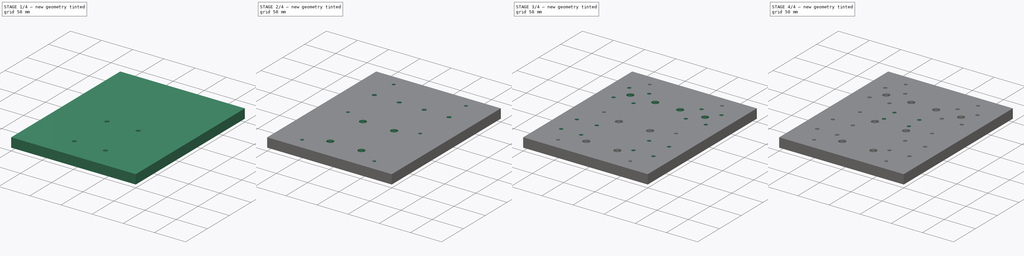
[diagram: build sequence overview — one tinted view per stage of 4, left to right]
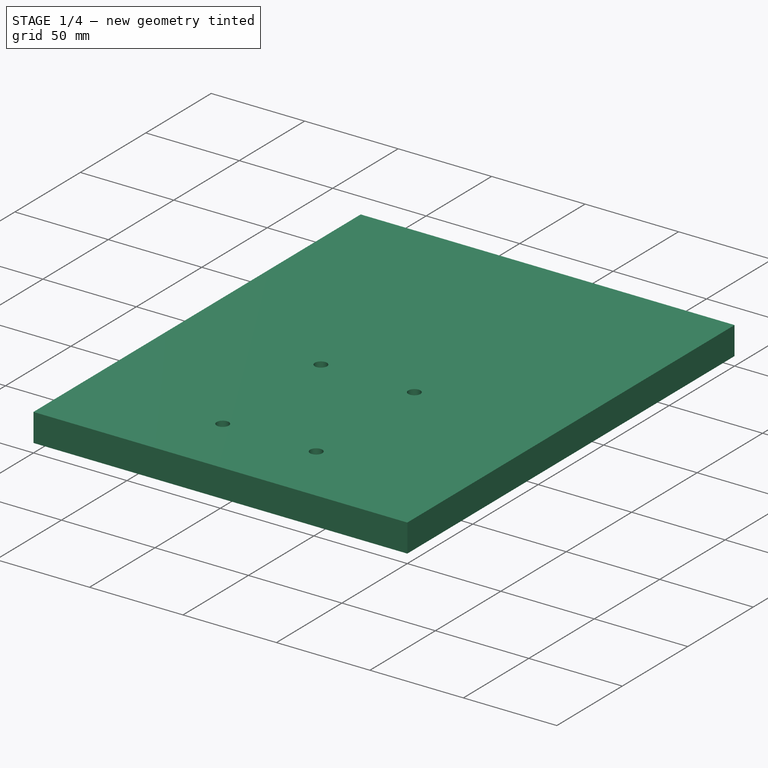
[diagram: stage 1 of 4 — iso view after this stage's code; geometry added in this stage tinted green]
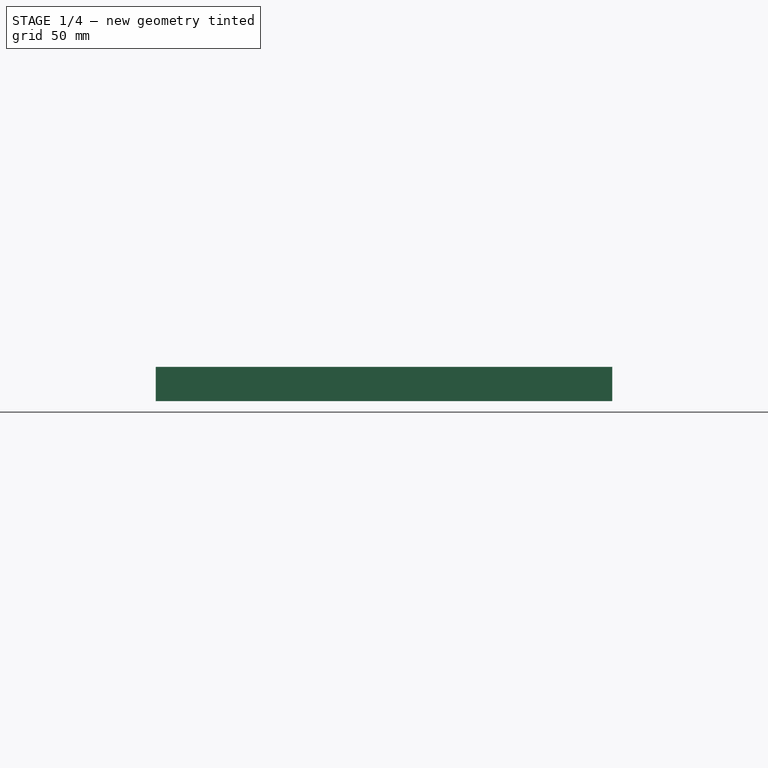
[diagram: stage 1 of 4 — front view after this stage's code; geometry added in this stage tinted green]
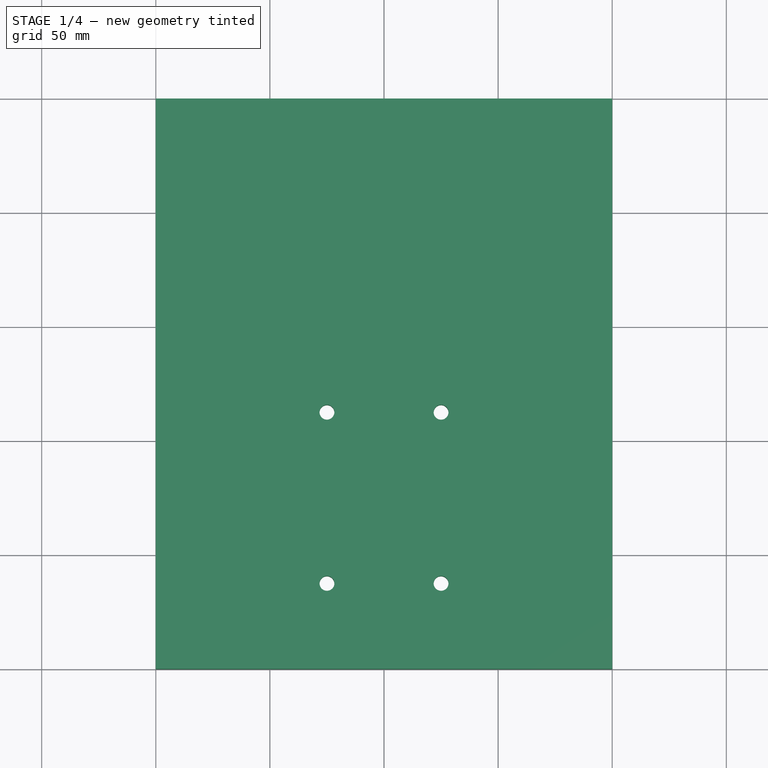
[diagram: stage 1 of 4 — top view after this stage's code; geometry added in this stage tinted green]
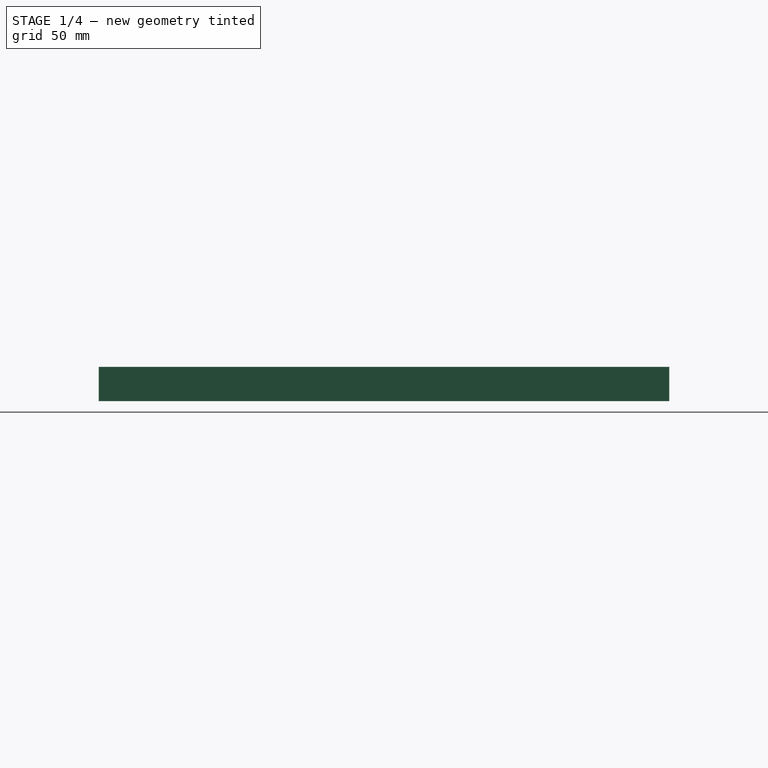
[diagram: stage 1 of 4 — right view after this stage's code; geometry added in this stage tinted green]
FCSTD DOCUMENT  (FreeCAD 0.17R9796 (Git))
Label: kreuzplatte1c
License: All rights reserved
LicenseURL: http://en.wikipedia.org/wiki/All_rights_reserved
objects: Sketcher::SketchObject×10, PartDesign::Pocket×9, PartDesign::Pad×1, PartDesign::Body×1
note: 31 computed .brp shape members not serialized (recipe doc carries the construction recipe); baked Part::Feature solids carry a one-line shape summary decoded from their .brp

FEATURE [Sketcher::SketchObject] Sketch
  MapMode = 5
  Support = -> [XY_Plane]
  sketch-geometry (4):
    g0: LineSegment StartX=0 StartY=250 StartZ=0 EndX=200 EndY=250 EndZ=0
    g1: LineSegment StartX=200 StartY=250 StartZ=0 EndX=200 EndY=0 EndZ=0
    g2: LineSegment StartX=200 StartY=0 StartZ=0 EndX=0 EndY=0 EndZ=0
    g3: LineSegment StartX=0 StartY=0 StartZ=0 EndX=0 EndY=250 EndZ=0
  constraints (11):
    c: Coincident(g0,g1)
    c: Coincident(g1,g2)
    c: Coincident(g2,g3)
    c: Coincident(g3,g0)
    c: Horizontal(g0)
    c: Horizontal(g2)
    c: Vertical(g1)
    c: Vertical(g3)
    c: Coincident(g2,g-1)
    c: DistanceX(g0,g0) = 200
    c: DistanceY(g3,g3) = 250
FEATURE [PartDesign::Pad] Pad
  Length = 15
  Length2 = 100
  Profile = -> Sketch
  Type = 0
FEATURE [Sketcher::SketchObject] Sketch001
  MapMode = 5
  Placement = pos=(0,0,15) rot=(0,0,1;0rad)
  Support = -> [Pad]
  sketch-geometry (4):
    g0: Circle CenterX=125 CenterY=37.5 CenterZ=0 NormalX=0 NormalY=0 NormalZ=1 Radius=3.25
    g1: Circle CenterX=75 CenterY=37.5 CenterZ=0 NormalX=0 NormalY=0 NormalZ=1 Radius=3.25
    g2: Circle CenterX=125 CenterY=112.5 CenterZ=0 NormalX=0 NormalY=0 NormalZ=1 Radius=3.25
    g3: Circle CenterX=75 CenterY=112.5 CenterZ=0 NormalX=0 NormalY=0 NormalZ=1 Radius=3.25
  constraints (12):
    c: DistanceY(g-1,g1) = 37.5
    c: DistanceY(g1,g0) = 0
    c: DistanceY(g1,g3) = 75
    c: DistanceY(g3,g2) = 0
    c: DistanceX(g-1,g1) = 75
    c: DistanceX(g1,g0) = 50
    c: DistanceX(g3,g1) = 0
    c: DistanceX(g0,g2) = 0
    c: Radius(g1) = 3.25
    c: Equal(g1,g3)
    c: Equal(g1,g2)
    c: Equal(g1,g0)
FEATURE [PartDesign::Pocket] Pocket
  BaseFeature = -> Pad
  Length = 15
  Profile = -> Sketch001
  Type = 0
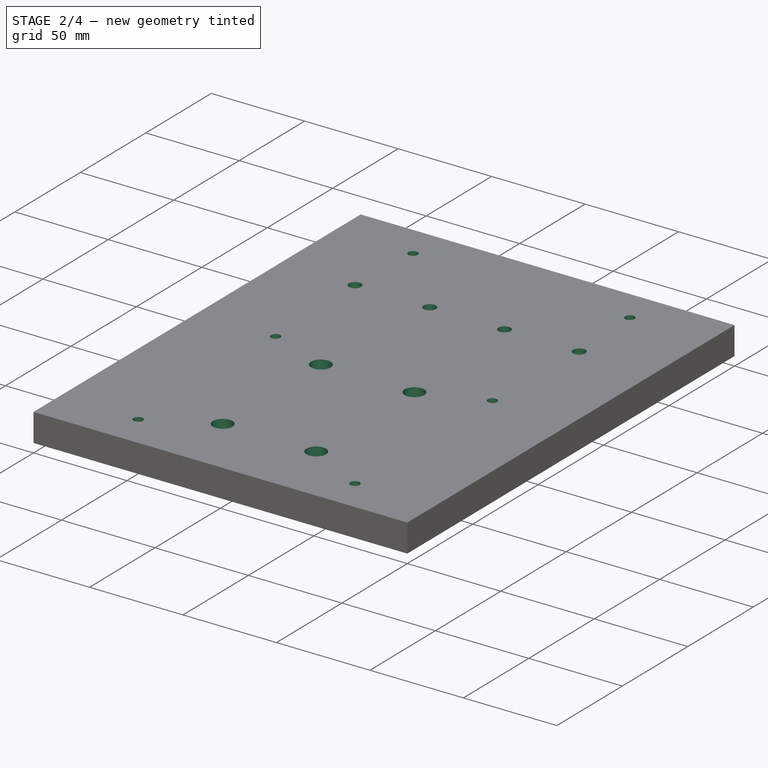
[diagram: stage 2 of 4 — iso view after this stage's code; geometry added in this stage tinted green]
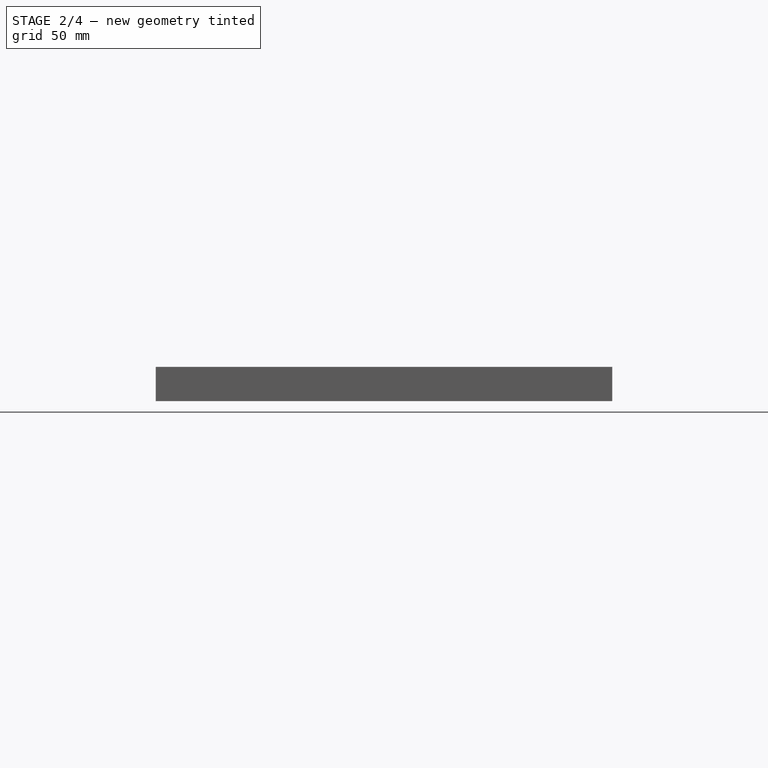
[diagram: stage 2 of 4 — front view after this stage's code; geometry added in this stage tinted green]
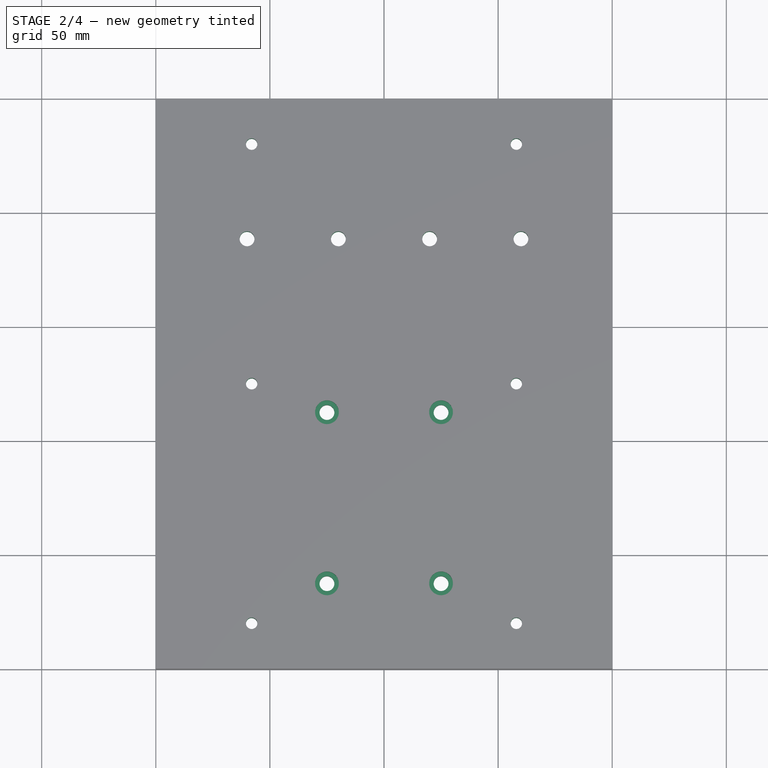
[diagram: stage 2 of 4 — top view after this stage's code; geometry added in this stage tinted green]
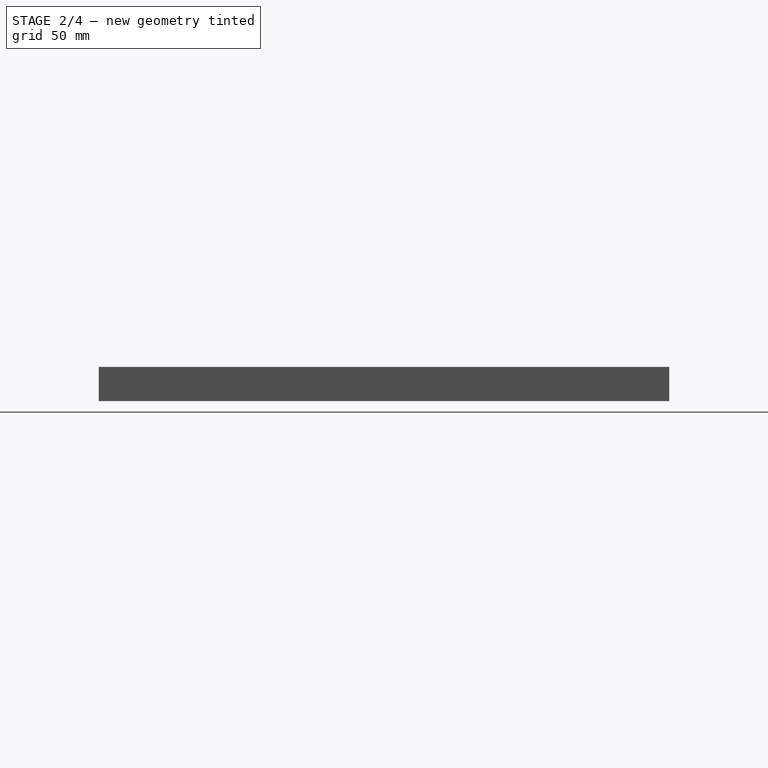
[diagram: stage 2 of 4 — right view after this stage's code; geometry added in this stage tinted green]
FEATURE [Sketcher::SketchObject] Sketch002
  MapMode = 5
  Placement = pos=(0,0,15) rot=(0,0,1;0rad)
  Support = -> [Pocket]
  sketch-geometry (4):
    g0: Circle CenterX=75 CenterY=112.5 CenterZ=0 NormalX=0 NormalY=0 NormalZ=1 Radius=5.2
    g1: Circle CenterX=125 CenterY=112.5 CenterZ=0 NormalX=0 NormalY=0 NormalZ=1 Radius=5.2
    g2: Circle CenterX=75 CenterY=37.5 CenterZ=0 NormalX=0 NormalY=0 NormalZ=1 Radius=5.2
    g3: Circle CenterX=125 CenterY=37.5 CenterZ=0 NormalX=0 NormalY=0 NormalZ=1 Radius=5.2
  constraints (12):
    c: DistanceY(g-1,g2) = 37.5
    c: DistanceY(g2,g3) = 0
    c: DistanceX(g-1,g2) = 75
    c: DistanceX(g2,g3) = 50
    c: DistanceY(g2,g0) = 75
    c: DistanceY(g0,g1) = 0
    c: DistanceX(g0,g2) = 0
    c: DistanceX(g1,g3) = 0
    c: Radius(g0) = 5.2
    c: Equal(g0,g1)
    c: Equal(g0,g3)
    c: Equal(g0,g2)
FEATURE [PartDesign::Pocket] Pocket001
  BaseFeature = -> Pocket
  Length = 6.2
  Profile = -> Sketch002
  Type = 0
FEATURE [Sketcher::SketchObject] Sketch003
  MapMode = 5
  Placement = pos=(0,0,15) rot=(0,0,1;0rad)
  Support = -> [Pocket001]
  sketch-geometry (6):
    g0: Circle CenterX=42 CenterY=230 CenterZ=0 NormalX=0 NormalY=0 NormalZ=1 Radius=2.5
    g1: Circle CenterX=42 CenterY=125 CenterZ=0 NormalX=0 NormalY=0 NormalZ=1 Radius=2.5
    g2: Circle CenterX=42 CenterY=20 CenterZ=0 NormalX=0 NormalY=0 NormalZ=1 Radius=2.5
    g3: Circle CenterX=158 CenterY=230 CenterZ=0 NormalX=0 NormalY=0 NormalZ=1 Radius=2.5
    g4: Circle CenterX=158 CenterY=125 CenterZ=0 NormalX=0 NormalY=0 NormalZ=1 Radius=2.5
    g5: Circle CenterX=158 CenterY=20 CenterZ=0 NormalX=0 NormalY=0 NormalZ=1 Radius=2.5
  constraints (18):
    c: DistanceX(g-1,g2) = 42
    c: DistanceY(g-1,g2) = 20
    c: DistanceX(g1,g2) = 0
    c: DistanceX(g0,g1) = 0
    c: DistanceY(g2,g5) = 0
    c: DistanceY(g4,g1) = 0
    c: DistanceY(g0,g3) = 0
    c: DistanceX(g-1,g5) = 158
    c: DistanceX(g5,g4) = 0
    c: DistanceX(g4,g3) = 0
    c: DistanceY(g-1,g1) = 125
    c: DistanceY(g1,g0) = 105
    c: Radius(g0) = 2.5
    c: Equal(g0,g3)
    c: Equal(g0,g4)
    c: Equal(g0,g1)
    c: Equal(g0,g2)
    c: Equal(g0,g5)
FEATURE [PartDesign::Pocket] Pocket002
  BaseFeature = -> Pocket001
  Length = 15
  Profile = -> Sketch003
  Type = 0
FEATURE [Sketcher::SketchObject] Sketch004
  MapMode = 5
  Placement = pos=(0,0,15) rot=(0,0,1;0rad)
  Support = -> [Pocket002]
  sketch-geometry (4):
    g0: Circle CenterX=40 CenterY=188.5 CenterZ=0 NormalX=0 NormalY=0 NormalZ=1 Radius=3.25
    g1: Circle CenterX=80 CenterY=188.5 CenterZ=0 NormalX=0 NormalY=0 NormalZ=1 Radius=3.25
    g2: Circle CenterX=120 CenterY=188.5 CenterZ=0 NormalX=0 NormalY=0 NormalZ=1 Radius=3.25
    g3: Circle CenterX=160 CenterY=188.5 CenterZ=0 NormalX=0 NormalY=0 NormalZ=1 Radius=3.25
  constraints (12):
    c: DistanceY(g-1,g0) = 188.5
    c: DistanceY(g0,g1) = 0
    c: DistanceY(g1,g2) = 0
    c: DistanceY(g2,g3) = 0
    c: Radius(g0) = 3.25
    c: Equal(g0,g1)
    c: Equal(g0,g2)
    c: Equal(g0,g3)
    c: DistanceX(g-1,g0) = 40
    c: DistanceX(g0,g1) = 40
    c: DistanceX(g1,g2) = 40
    c: DistanceX(g2,g3) = 40
FEATURE [PartDesign::Pocket] Pocket003
  BaseFeature = -> Pocket002
  Length = 15
  Profile = -> Sketch004
  Type = 0
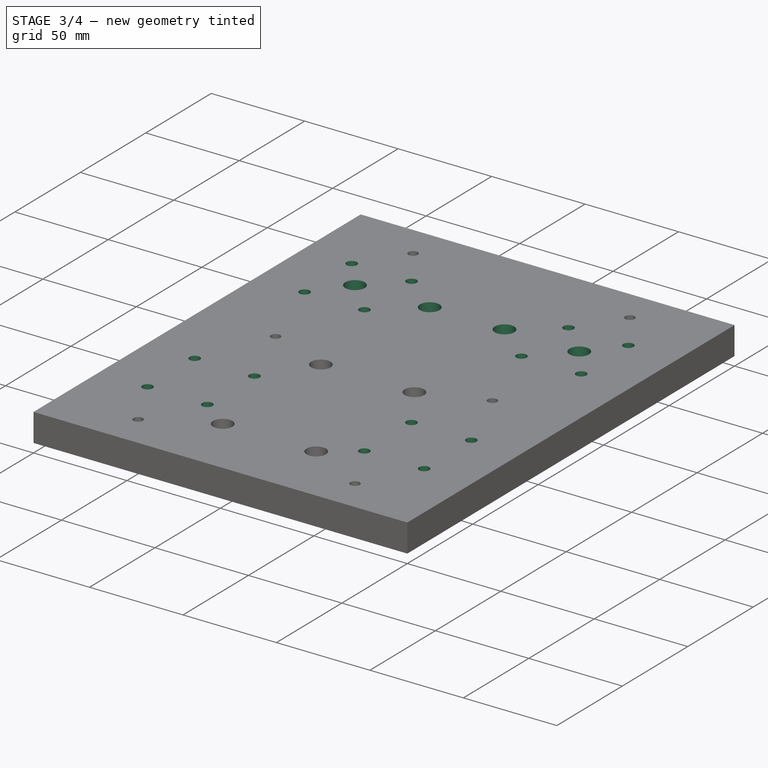
[diagram: stage 3 of 4 — iso view after this stage's code; geometry added in this stage tinted green]
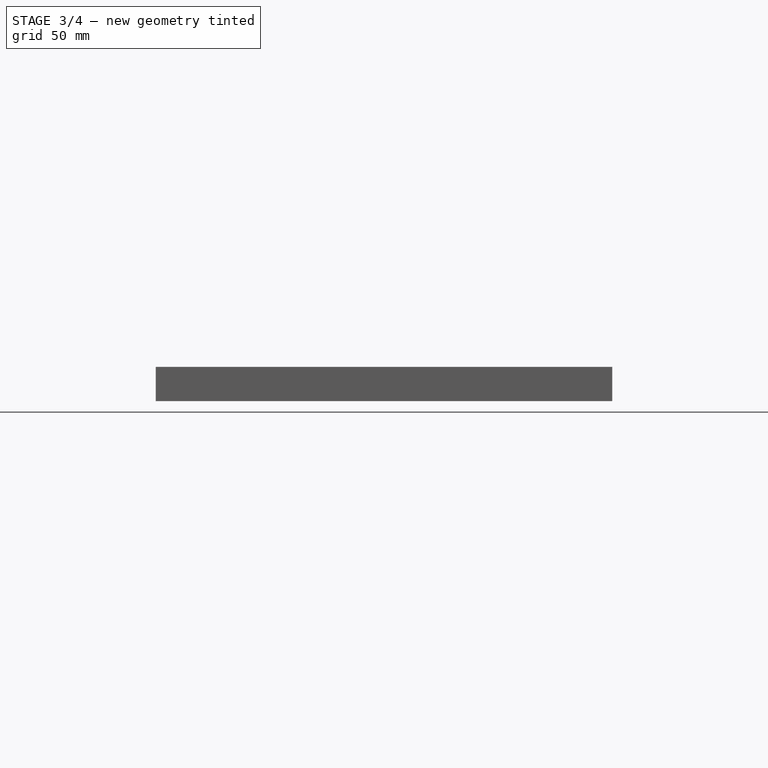
[diagram: stage 3 of 4 — front view after this stage's code; geometry added in this stage tinted green]
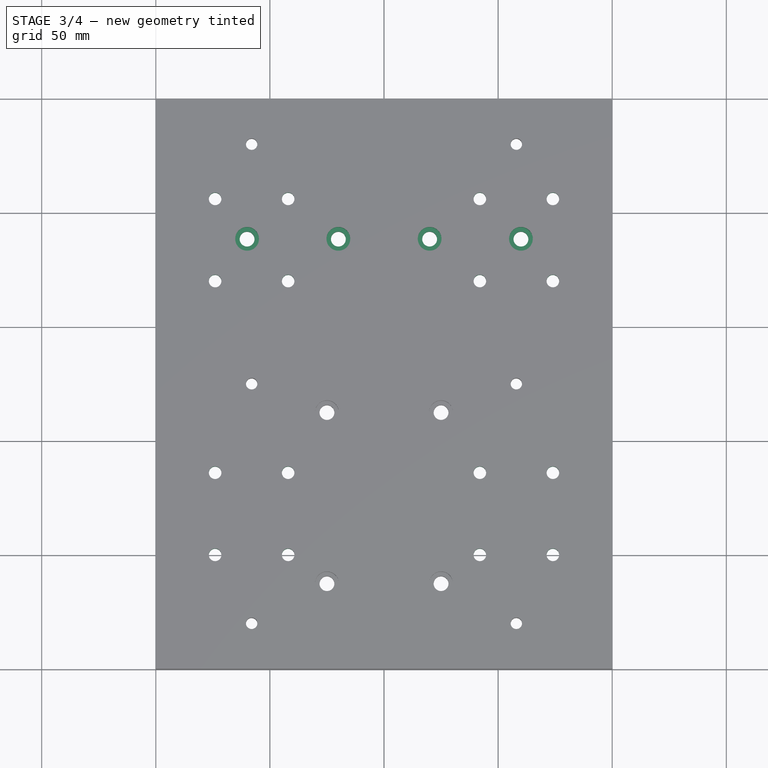
[diagram: stage 3 of 4 — top view after this stage's code; geometry added in this stage tinted green]
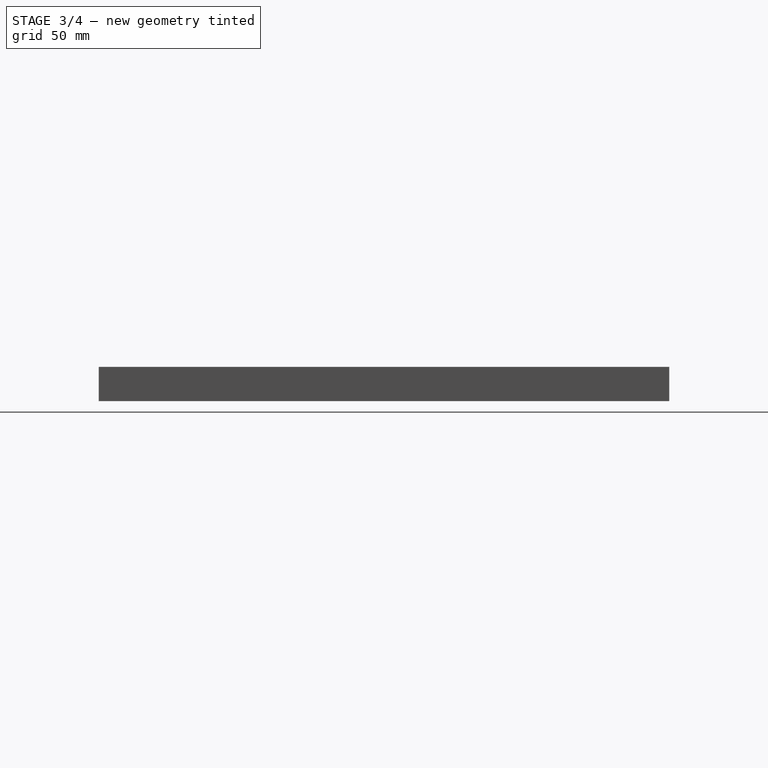
[diagram: stage 3 of 4 — right view after this stage's code; geometry added in this stage tinted green]
FEATURE [Sketcher::SketchObject] Sketch005
  MapMode = 5
  Placement = pos=(0,0,15) rot=(0,0,1;0rad)
  Support = -> [Pocket003]
  sketch-geometry (4):
    g0: Circle CenterX=40 CenterY=188.5 CenterZ=0 NormalX=0 NormalY=0 NormalZ=1 Radius=5.2
    g1: Circle CenterX=80 CenterY=188.5 CenterZ=0 NormalX=0 NormalY=0 NormalZ=1 Radius=5.2
    g2: Circle CenterX=120 CenterY=188.5 CenterZ=0 NormalX=0 NormalY=0 NormalZ=1 Radius=5.2
    g3: Circle CenterX=160 CenterY=188.5 CenterZ=0 NormalX=0 NormalY=0 NormalZ=1 Radius=5.2
  constraints (12):
    c: DistanceY(g-1,g0) = 188.5
    c: DistanceY(g0,g1) = 0
    c: DistanceY(g1,g2) = 0
    c: DistanceY(g2,g3) = 0
    c: DistanceX(g-1,g0) = 40
    c: DistanceX(g0,g1) = 40
    c: DistanceX(g1,g2) = 40
    c: DistanceX(g2,g3) = 40
    c: Radius(g0) = 5.2
    c: Equal(g0,g1)
    c: Equal(g0,g2)
    c: Equal(g0,g3)
FEATURE [PartDesign::Pocket] Pocket004
  BaseFeature = -> Pocket003
  Length = 7
  Profile = -> Sketch005
  Type = 0
FEATURE [Sketcher::SketchObject] Sketch006
  MapMode = 5
  Placement = pos=(0,0,15) rot=(0,0,1;0rad)
  Support = -> [Pocket004]
  sketch-geometry (16):
    g0: Circle CenterX=26 CenterY=206 CenterZ=0 NormalX=0 NormalY=0 NormalZ=1 Radius=2.75
    g1: Circle CenterX=58 CenterY=206 CenterZ=0 NormalX=0 NormalY=0 NormalZ=1 Radius=2.75
    g2: Circle CenterX=26 CenterY=170 CenterZ=0 NormalX=0 NormalY=0 NormalZ=1 Radius=2.75
    g3: Circle CenterX=58 CenterY=170 CenterZ=0 NormalX=0 NormalY=0 NormalZ=1 Radius=2.75
    g4: Circle CenterX=26 CenterY=86 CenterZ=0 NormalX=0 NormalY=0 NormalZ=1 Radius=2.75
    g5: Circle CenterX=58 CenterY=86 CenterZ=0 NormalX=0 NormalY=0 NormalZ=1 Radius=2.75
    g6: Circle CenterX=26 CenterY=50 CenterZ=0 NormalX=0 NormalY=0 NormalZ=1 Radius=2.75
    g7: Circle CenterX=58 CenterY=50 CenterZ=0 NormalX=0 NormalY=0 NormalZ=1 Radius=2.75
    g8: Circle CenterX=142 CenterY=206 CenterZ=0 NormalX=0 NormalY=0 NormalZ=1 Radius=2.75
    g9: Circle CenterX=174 CenterY=206 CenterZ=0 NormalX=0 NormalY=0 NormalZ=1 Radius=2.75
    g10: Circle CenterX=142 CenterY=170 CenterZ=0 NormalX=0 NormalY=0 NormalZ=1 Radius=2.75
    g11: Circle CenterX=174 CenterY=170 CenterZ=0 NormalX=0 NormalY=0 NormalZ=1 Radius=2.75
    g12: Circle CenterX=142 CenterY=86 CenterZ=0 NormalX=0 NormalY=0 NormalZ=1 Radius=2.75
    g13: Circle CenterX=174 CenterY=86 CenterZ=0 NormalX=0 NormalY=0 NormalZ=1 Radius=2.75
    g14: Circle CenterX=142 CenterY=50 CenterZ=0 NormalX=0 NormalY=0 NormalZ=1 Radius=2.75
    g15: Circle CenterX=174 CenterY=50 CenterZ=0 NormalX=0 NormalY=0 NormalZ=1 Radius=2.75
  constraints (45):
    c: DistanceX(g-1,g6) = 26
    c: DistanceX(g6,g7) = 32
    c: DistanceX(g4,g6) = 0
    c: DistanceX(g2,g4) = 0
    c: DistanceX(g0,g2) = 0
    c: DistanceX(g5,g7) = 0
    c: DistanceX(g3,g5) = 0
    c: DistanceX(g1,g3) = 0
    c: DistanceX(g-1,g14) = 142
    c: DistanceX(g14,g15) = 32
    c: DistanceY(g6,g7) = 0
    c: DistanceY(g7,g14) = 0
    c: DistanceY(g14,g15) = 0
    c: DistanceX(g12,g14) = 0
    c: DistanceX(g10,g12) = 0
    c: DistanceX(g8,g10) = 0
    c: DistanceX(g15,g13) = 0
    c: DistanceX(g11,g13) = 0
    c: DistanceX(g11,g9) = 0
    c: DistanceY(g4,g5) = 0
    c: DistanceY(g12,g5) = 0
    c: DistanceY(g12,g13) = 0
    c: DistanceY(g-1,g6) = 50
    c: DistanceY(g-1,g4) = 86
    c: DistanceY(g-1,g2) = 170
    c: DistanceY(g-1,g0) = 206
    c: DistanceY(g3,g2) = 0
    c: DistanceY(g10,g3) = 0
    c: DistanceY(g11,g10) = 0
    c: DistanceY(g0,g1) = 0
    c: DistanceY(g1,g8) = 0
    c: DistanceY(g8,g9) = 0
    c: Radius(g0) = 2.75
    c: Equal(g0,g1)
    c: Equal(g0,g3)
    c: Equal(g0,g2)
    c: Equal(g0,g4)
    c: Equal(g0,g5)
    c: Equal(g0,g7)
    c: Equal(g0,g6)
    c: Equal(g0, g8-g11) x4
    c: Equal(g0,g13)
    c: Equal(g0,g12)
    c: Equal(g0,g15)
    c: Equal(g0,g14)
FEATURE [PartDesign::Pocket] Pocket005
  BaseFeature = -> Pocket004
  Length = 15
  Profile = -> Sketch006
  Type = 0
FEATURE [Sketcher::SketchObject] Sketch007
  MapMode = 5
  Placement = pos=(0,0,0) rot=(1,0,0;3.14159rad)
  Support = -> [Pocket005]
  sketch-geometry (16):
    g0: Circle CenterX=26 CenterY=-50 CenterZ=0 NormalX=0 NormalY=0 NormalZ=1 Radius=5
    g1: Circle CenterX=58 CenterY=-50 CenterZ=0 NormalX=0 NormalY=0 NormalZ=1 Radius=5
    g2: Circle CenterX=142 CenterY=-50 CenterZ=0 NormalX=0 NormalY=0 NormalZ=1 Radius=5
    g3: Circle CenterX=174 CenterY=-50 CenterZ=0 NormalX=0 NormalY=0 NormalZ=1 Radius=5
    g4: Circle CenterX=142 CenterY=-86 CenterZ=0 NormalX=0 NormalY=0 NormalZ=1 Radius=5
    g5: Circle CenterX=174 CenterY=-86 CenterZ=0 NormalX=0 NormalY=0 NormalZ=1 Radius=5
    g6: Circle CenterX=26 CenterY=-86 CenterZ=0 NormalX=0 NormalY=0 NormalZ=1 Radius=5
    g7: Circle CenterX=58 CenterY=-86 CenterZ=0 NormalX=0 NormalY=0 NormalZ=1 Radius=5
    g8: Circle CenterX=26 CenterY=-170 CenterZ=0 NormalX=0 NormalY=0 NormalZ=1 Radius=5
    g9: Circle CenterX=58 CenterY=-170 CenterZ=0 NormalX=0 NormalY=0 NormalZ=1 Radius=5
    g10: Circle CenterX=26 CenterY=-206 CenterZ=0 NormalX=0 NormalY=0 NormalZ=1 Radius=5
    g11: Circle CenterX=58 CenterY=-206 CenterZ=0 NormalX=0 NormalY=0 NormalZ=1 Radius=5
    g12: Circle CenterX=142 CenterY=-170 CenterZ=0 NormalX=0 NormalY=0 NormalZ=1 Radius=5
    g13: Circle CenterX=174 CenterY=-170 CenterZ=0 NormalX=0 NormalY=0 NormalZ=1 Radius=5
    g14: Circle CenterX=142 CenterY=-206 CenterZ=0 NormalX=0 NormalY=0 NormalZ=1 Radius=5
    g15: Circle CenterX=174 CenterY=-206 CenterZ=0 NormalX=0 NormalY=0 NormalZ=1 Radius=5
  constraints (48):
    c: DistanceY(g0,g-1) = 50
    c: DistanceY(g6,g-1) = 86
    c: DistanceY(g8,g-1) = 170
    c: DistanceY(g10,g-1) = 206
    c: DistanceX(g-1,g0) = 26
    c: DistanceX(g-1,g1) = 58
    c: DistanceX(g-1,g3) = 174
    c: DistanceX(g-1,g2) = 142
    c: DistanceY(g0,g1) = 0
    c: DistanceY(g1,g2) = 0
    c: DistanceY(g2,g3) = 0
    c: DistanceX(g6,g0) = 0
    c: DistanceX(g8,g6) = 0
    c: DistanceX(g10,g8) = 0
    c: DistanceY(g6,g7) = 0
    c: DistanceY(g7,g4) = 0
    c: DistanceY(g4,g5) = 0
    c: DistanceY(g8,g9) = 0
    c: DistanceY(g9,g12) = 0
    c: DistanceY(g12,g13) = 0
    c: DistanceY(g10,g11) = 0
    c: DistanceY(g11,g14) = 0
    c: DistanceY(g14,g15) = 0
    c: DistanceX(g7,g1) = 0
    c: DistanceX(g9,g7) = 0
    c: DistanceX(g11,g9) = 0
    c: DistanceX(g4,g2) = 0
    c: DistanceX(g12,g4) = 0
    c: DistanceX(g14,g12) = 0
    c: DistanceX(g5,g3) = 0
    c: DistanceX(g13,g5) = 0
    c: DistanceX(g15,g13) = 0
    c: Radius(g0) = 5
    c: Equal(g0,g1)
    c: Equal(g0,g2)
    c: Equal(g0,g3)
    c: Equal(g0,g6)
    c: Equal(g0,g7)
    c: Equal(g0,g4)
    c: Equal(g0,g5)
    c: Equal(g0,g13)
    c: Equal(g0,g12)
    c: Equal(g0,g9)
    c: Equal(g0,g8)
    c: Equal(g0,g10)
    c: Equal(g0,g11)
    c: Equal(g0,g14)
    c: Equal(g0,g15)
FEATURE [PartDesign::Pocket] Pocket006
  BaseFeature = -> Pocket005
  Length = 6
  Profile = -> Sketch007
  Type = 0
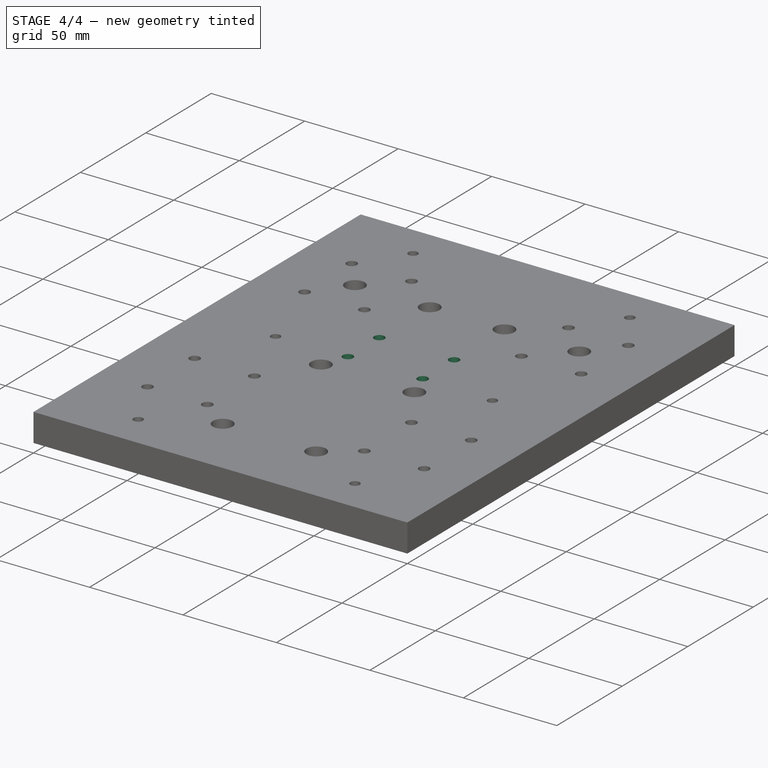
[diagram: stage 4 of 4 — iso view after this stage's code; geometry added in this stage tinted green]
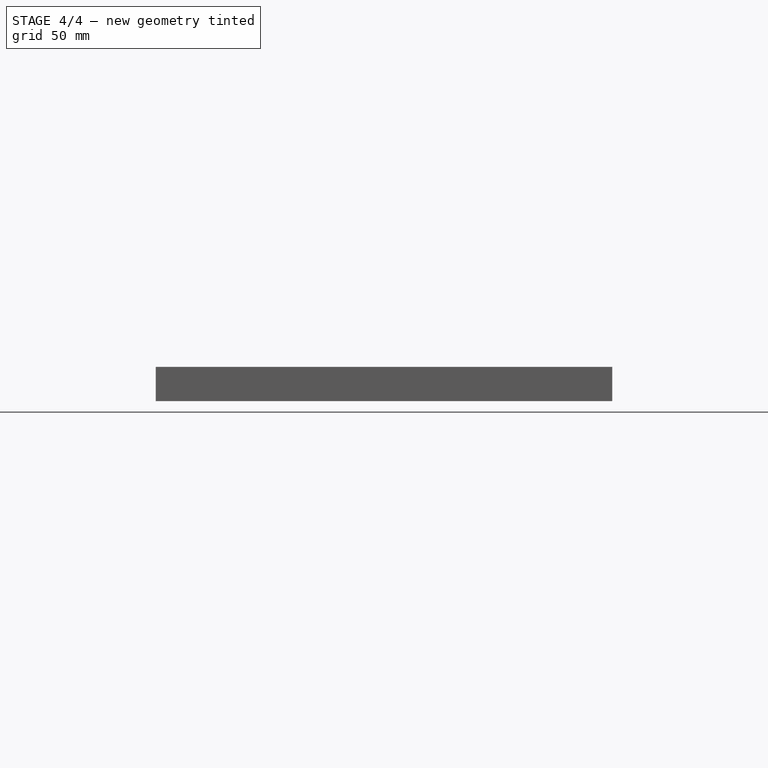
[diagram: stage 4 of 4 — front view after this stage's code; geometry added in this stage tinted green]
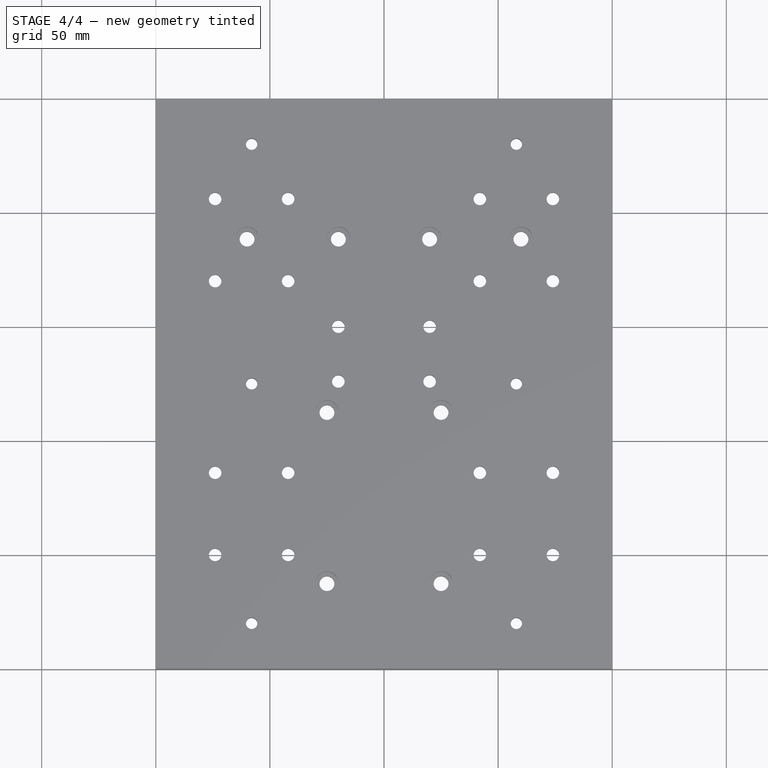
[diagram: stage 4 of 4 — top view after this stage's code; geometry added in this stage tinted green]
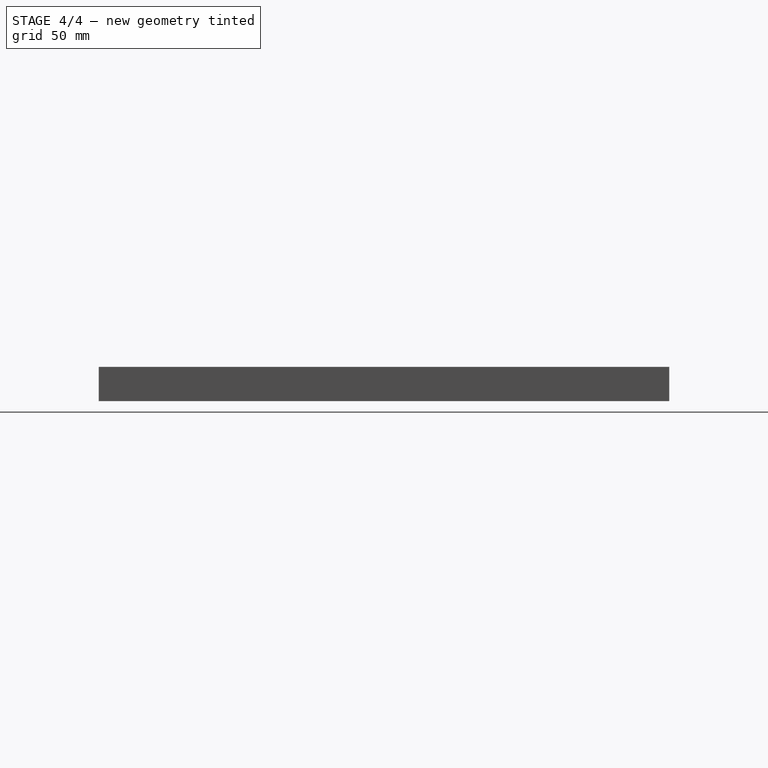
[diagram: stage 4 of 4 — right view after this stage's code; geometry added in this stage tinted green]
FEATURE [Sketcher::SketchObject] Sketch008
  MapMode = 5
  Placement = pos=(0,0,15) rot=(0,0,1;0rad)
  Support = -> [Pocket006]
  sketch-geometry (4):
    g0: Circle CenterX=80 CenterY=150 CenterZ=0 NormalX=0 NormalY=0 NormalZ=1 Radius=2.75
    g1: Circle CenterX=120 CenterY=150 CenterZ=0 NormalX=0 NormalY=0 NormalZ=1 Radius=2.75
    g2: Circle CenterX=80 CenterY=126 CenterZ=0 NormalX=0 NormalY=0 NormalZ=1 Radius=2.75
    g3: Circle CenterX=120 CenterY=126 CenterZ=0 NormalX=0 NormalY=0 NormalZ=1 Radius=2.75
  constraints (12):
    c: DistanceY(g-1,g2) = 126
    c: DistanceX(g-1,g2) = 80
    c: DistanceY(g-1,g0) = 150
    c: DistanceY(g2,g3) = 0
    c: DistanceY(g0,g1) = 0
    c: DistanceX(g0,g2) = 0
    c: DistanceX(g1,g3) = 0
    c: Radius(g0) = 2.75
    c: Equal(g0,g1)
    c: Equal(g0,g3)
    c: Equal(g0,g2)
    c: DistanceX(g2,g3) = 40
FEATURE [PartDesign::Pocket] Pocket007
  BaseFeature = -> Pocket006
  Length = 15
  Profile = -> Sketch008
  Type = 0
FEATURE [Sketcher::SketchObject] Sketch009
  MapMode = 5
  Placement = pos=(0,0,0) rot=(1,0,0;3.14159rad)
  Support = -> [Pocket007]
  sketch-geometry (4):
    g0: Circle CenterX=80 CenterY=-126 CenterZ=0 NormalX=0 NormalY=0 NormalZ=1 Radius=5
    g1: Circle CenterX=120 CenterY=-126 CenterZ=0 NormalX=0 NormalY=0 NormalZ=1 Radius=5
    g2: Circle CenterX=80 CenterY=-150 CenterZ=0 NormalX=0 NormalY=0 NormalZ=1 Radius=5
    g3: Circle CenterX=120 CenterY=-150 CenterZ=0 NormalX=0 NormalY=0 NormalZ=1 Radius=5
  constraints (12):
    c: DistanceY(g0,g-1) = 126
    c: DistanceY(g2,g-1) = 150
    c: DistanceX(g-1,g0) = 80
    c: DistanceX(g0,g1) = 40
    c: DistanceX(g3,g1) = 0
    c: DistanceX(g2,g0) = 0
    c: DistanceY(g0,g1) = 0
    c: DistanceY(g3,g2) = 0
    c: Radius(g0) = 5
    c: Equal(g0,g1)
    c: Equal(g0,g2)
    c: Equal(g0,g3)
FEATURE [PartDesign::Pocket] Pocket008
  BaseFeature = -> Pocket007
  Length = 6
  Profile = -> Sketch009
  Type = 0
FEATURE [PartDesign::Body] Body
  Group = -> [Sketch,Pad,Sketch001,Pocket,Sketch002,Pocket001,Sketch003,Pocket002,Sketch004,Pocket003,Sketch005,Pocket004,Sketch006,Pocket005,Sketch007,Pocket006,Sketch008,Pocket007,Sketch009,Pocket008]
  Origin = -> BodyOrigin
  Tip = -> Pocket008
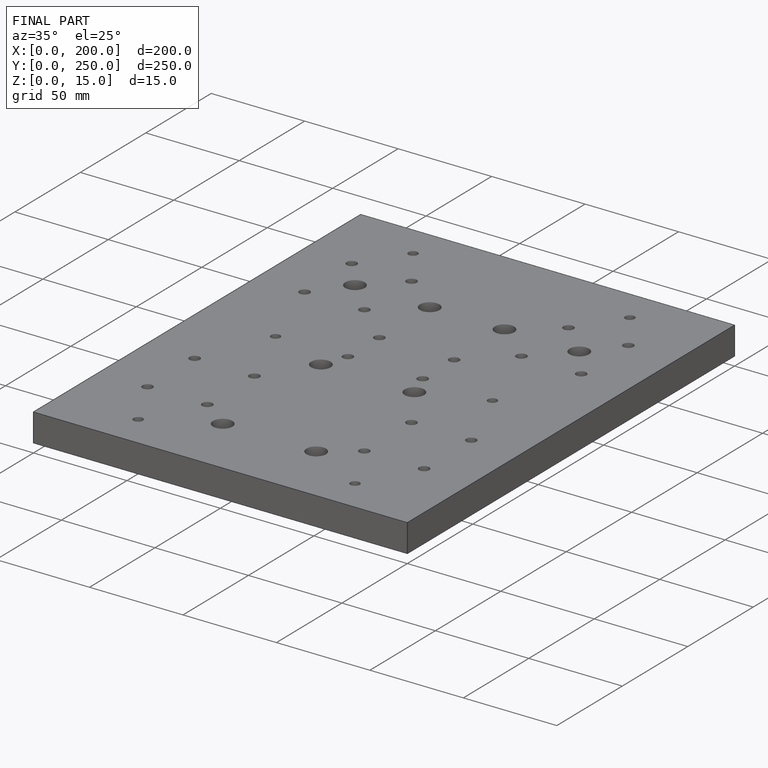
[diagram: finished part — iso view with bounding-box wireframe]
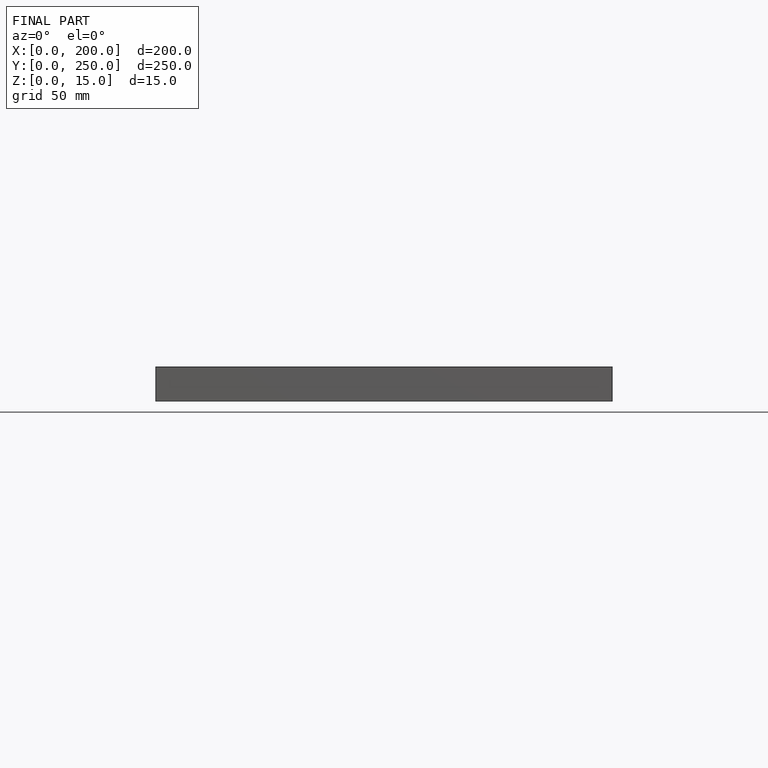
[diagram: finished part — front view with bounding-box wireframe]
